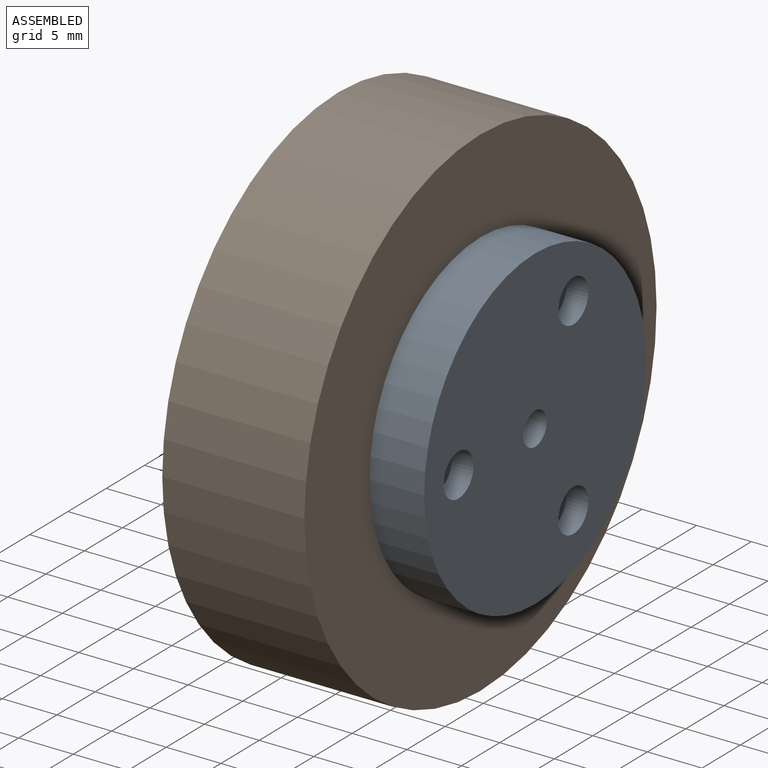
[diagram: assembled view]
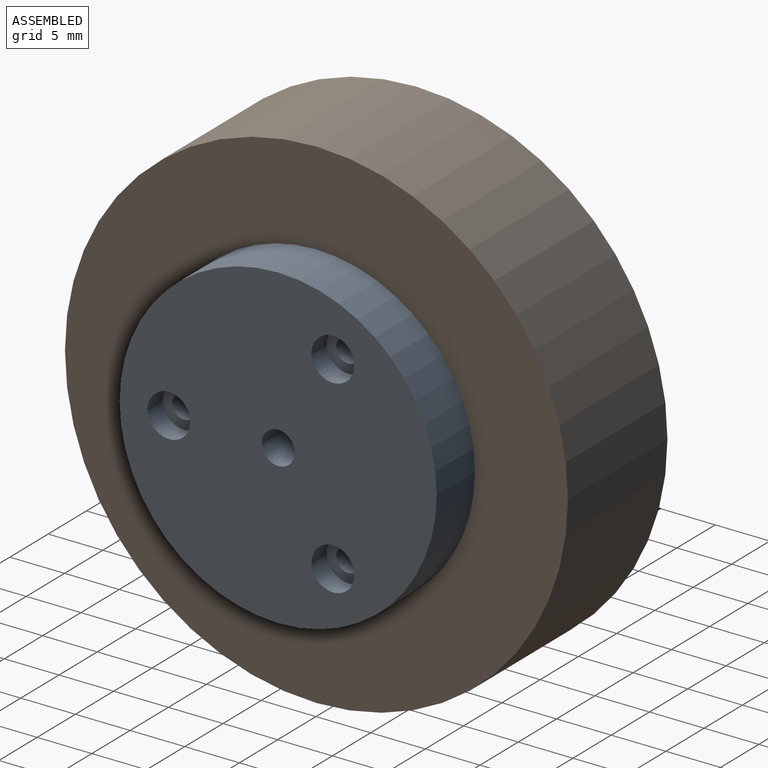
[diagram: assembled view, second angle]
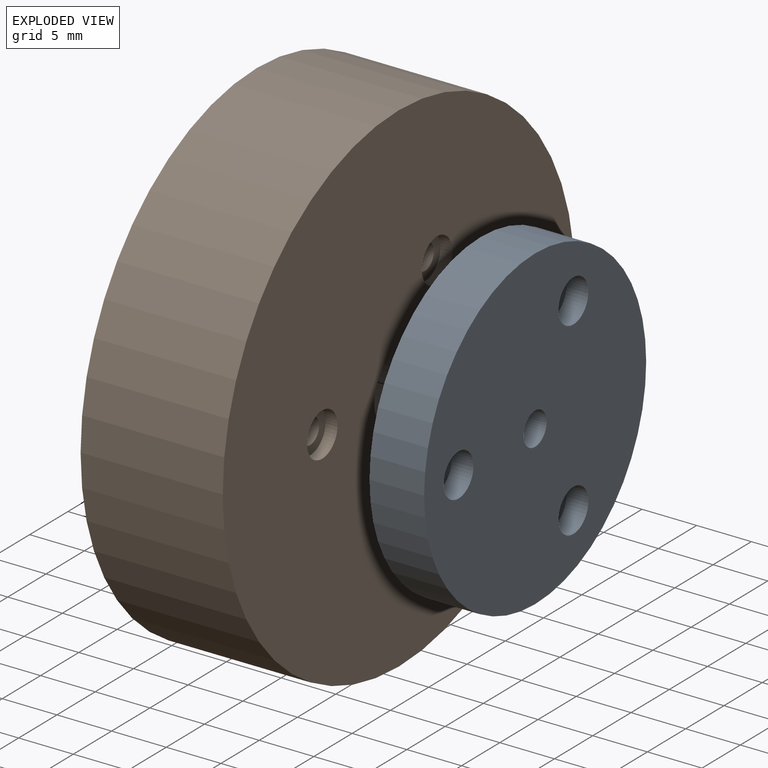
[diagram: exploded view]
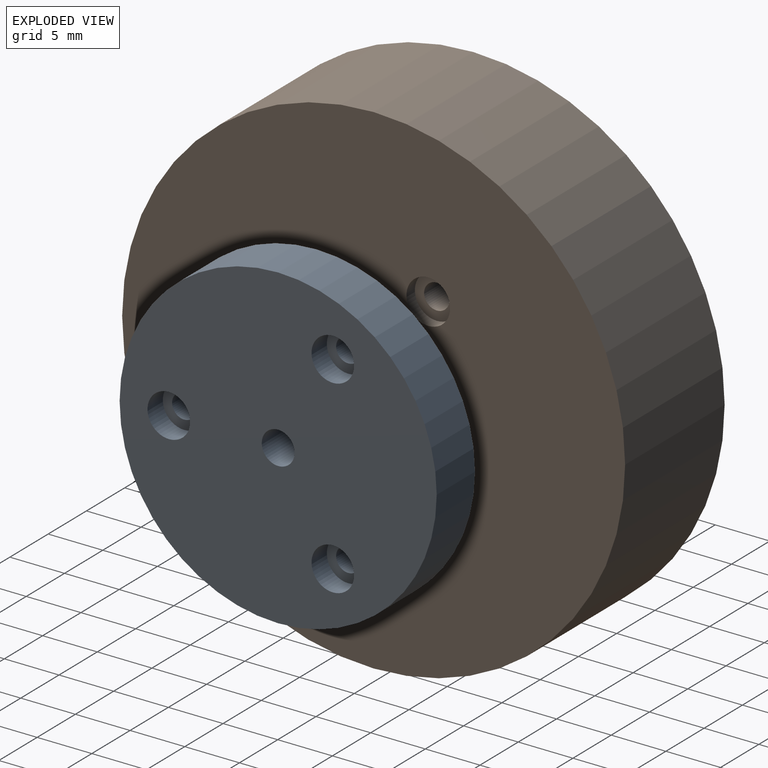
[diagram: exploded view, second angle]
ASSEMBLY  parts=2 mates=2
PART A: 15 faces, bbox 29x29x10 mm
  f0: cylinder r=1.1mm len=3mm, axis (0,0,-1), area 20.7mm2, adj f4,f14
  f1: cylinder r=1.1mm len=3mm, axis (0,0,-1), area 20.7mm2, adj f4,f12
  f2: cylinder r=1.1mm len=3mm, axis (0,0,-1), area 20.7mm2, adj f4,f10
  f3: cylinder r=14.5mm len=29mm, axis (0,0,-1), area 455.5mm2, adj f4,f5
  f4: plane 29x29mm, normal (0,0,1), area 616.9mm2, adj f0,f1,f2,f3,f6
  f5: plane 29x29mm, normal (0,0,-1), area 617.6mm2, adj f3,f8,f9,f11,f13
  f6: cylinder r=3.2mm len=6.4mm, axis (0,0,-1), area 100.5mm2, adj f4,f7
  f7: plane 6.4x6.4mm, normal (0,0,1), area 25.1mm2, adj f6,f8
  f8: cylinder r=1.5mm len=10mm, axis (0,0,1), area 94.2mm2, adj f5,f7
  f9: cylinder r=1.95mm len=3.9mm, axis (0,0,-1), area 24.5mm2, adj f5,f10
  f10: plane 3.9x3.9mm, normal (0,0,-1), area 8.1mm2, adj f2,f9
  f11: cylinder r=1.95mm len=3.9mm, axis (0,0,-1), area 24.5mm2, adj f5,f12
  f12: plane 3.9x3.9mm, normal (0,0,-1), area 8.1mm2, adj f1,f11
  f13: cylinder r=1.95mm len=3.9mm, axis (0,0,-1), area 24.5mm2, adj f5,f14
  f14: plane 3.9x3.9mm, normal (0,0,-1), area 8.1mm2, adj f0,f13
PART B: 46 faces, bbox 46x46x14.5 mm
  f0: cylinder r=1.55mm len=3.1mm, axis (0,0,1), area 22.1mm2, adj f2,f3,f4,f5,f6,f9,f10,f11
  f1: cylinder r=5mm len=10mm, axis (0,0,-1), area 21.5mm2, adj f2,f3,f4,f5,f6,f7
  f2: plane 9.89x4.25mm, normal (0,0,1), area 30.3mm2, adj f0,f1,f4,f5
  f3: cylinder r=0.75mm len=3.64mm, axis (1,0,0), area 8.3mm2, adj f0,f1,f4,f8,f10
  f4: plane 3.59x0.75mm, normal (0,1,0), area 2.7mm2, adj f0,f1,f2,f3
  f5: plane 3.59x0.75mm, normal (0,1,0), area 2.7mm2, adj f0,f1,f2,f6
  f6: cylinder r=0.75mm len=3.64mm, axis (1,0,0), area 8.3mm2, adj f0,f1,f5,f8,f11
  f7: plane 46x46mm, normal (0,0,1), area 1541.8mm2, adj f1,f8,f15,f25,f26,f27,f28,f29
  f8: cylinder r=5mm len=10mm, axis (0,0,-1), area 21.5mm2, adj f3,f6,f7,f9,f10,f11
  f9: plane 9.89x4.25mm, normal (0,0,1), area 30.3mm2, adj f0,f8,f10,f11
  f10: plane 3.59x0.75mm, normal (0,-1,0), area 2.7mm2, adj f0,f3,f8,f9
  f11: plane 3.59x0.75mm, normal (0,-1,0), area 2.7mm2, adj f0,f6,f8,f9
  f12: cylinder r=1.15mm len=10.9mm, axis (0,0,1), area 78.8mm2, adj f22,f31
  f13: cylinder r=1.15mm len=10.9mm, axis (0,0,1), area 78.8mm2, adj f20,f38
  f14: cylinder r=1.15mm len=10.9mm, axis (0,0,1), area 78.8mm2, adj f18,f45
  f15: cylinder r=23mm len=46mm, axis (0,0,-1), area 1878.7mm2, adj f7,f16
  f16: plane 46x46mm, normal (0,0,-1), area 1592mm2, adj f15,f17,f19,f21,f23
  f17: cylinder r=2mm len=4mm, axis (0,0,-1), area 13.8mm2, adj f16,f18
  f18: plane 4x4mm, normal (0,0,-1), area 8.4mm2, adj f14,f17
  f19: cylinder r=2mm len=4mm, axis (0,0,-1), area 13.8mm2, adj f16,f20
  f20: plane 4x4mm, normal (0,0,-1), area 8.4mm2, adj f13,f19
  f21: cylinder r=2mm len=4mm, axis (0,0,-1), area 13.8mm2, adj f16,f22
  f22: plane 4x4mm, normal (0,0,-1), area 8.4mm2, adj f12,f21
  f23: cylinder r=3.2mm len=11.8mm, axis (0,0,-1), area 237.3mm2, adj f16,f24
  f24: plane 6.4x6.4mm, normal (0,0,-1), area 24.6mm2, adj f0,f23
  f25: plane 2.31x1mm, normal (0,-1,0), area 2.3mm2, adj f7,f26,f30,f31
  f26: plane 2x1.16mm, normal (0.87,-0.5,0), area 2.3mm2, adj f7,f25,f27,f31
  f27: plane 2x1.16mm, normal (0.87,0.5,0), area 2.3mm2, adj f7,f26,f28,f31
  f28: plane 2.31x1mm, normal (0,1,0), area 2.3mm2, adj f7,f27,f29,f31
  f29: plane 2x1.16mm, normal (-0.87,0.5,0), area 2.3mm2, adj f7,f28,f30,f31
  f30: plane 2x1.16mm, normal (-0.87,-0.5,0), area 2.3mm2, adj f7,f25,f29,f31
  f31: plane 4.62x4mm, normal (0,0,1), area 9.7mm2, adj f12,f25,f26,f27,f28,f29,f30
  f32: plane 2.31x1mm, normal (0,-1,0), area 2.3mm2, adj f7,f33,f37,f38
  f33: plane 2x1.16mm, normal (0.87,-0.5,0), area 2.3mm2, adj f7,f32,f34,f38
  f34: plane 2x1.16mm, normal (0.87,0.5,0), area 2.3mm2, adj f7,f33,f35,f38
  f35: plane 2.31x1mm, normal (0,1,0), area 2.3mm2, adj f7,f34,f36,f38
  f36: plane 2x1.16mm, normal (-0.87,0.5,0), area 2.3mm2, adj f7,f35,f37,f38
  f37: plane 2x1.16mm, normal (-0.87,-0.5,0), area 2.3mm2, adj f7,f32,f36,f38
  f38: plane 4.62x4mm, normal (0,0,1), area 9.7mm2, adj f13,f32,f33,f34,f35,f36,f37
  f39: plane 2.31x1mm, normal (0,-1,0), area 2.3mm2, adj f7,f40,f44,f45
  f40: plane 2x1.16mm, normal (0.87,-0.5,0), area 2.3mm2, adj f7,f39,f41,f45
  f41: plane 2x1.16mm, normal (0.87,0.5,0), area 2.3mm2, adj f7,f40,f42,f45
  f42: plane 2.31x1mm, normal (0,1,0), area 2.3mm2, adj f7,f41,f43,f45
  f43: plane 2x1.16mm, normal (-0.87,0.5,0), area 2.3mm2, adj f7,f42,f44,f45
  f44: plane 2x1.16mm, normal (-0.87,-0.5,0), area 2.3mm2, adj f7,f39,f43,f45
  f45: plane 4.62x4mm, normal (0,0,1), area 9.7mm2, adj f14,f39,f40,f41,f42,f43,f44
PLACE A rot(axis=(0,-1,0),90deg) t=(4.8,-0.09,0.09)mm
PLACE B rot(axis=(0.45,-0.77,-0.45),104.5deg) t=(-0.2,-0.09,0.09)mm
MATE cylindrical B.f12 <-> A.f2  axis (1,0,0) through (-0.2,-10.09,0.09)mm
MATE revolute A.f6 <-> B.f23  axis (1,0,0) through (-0.2,-0.09,0.09)mm
